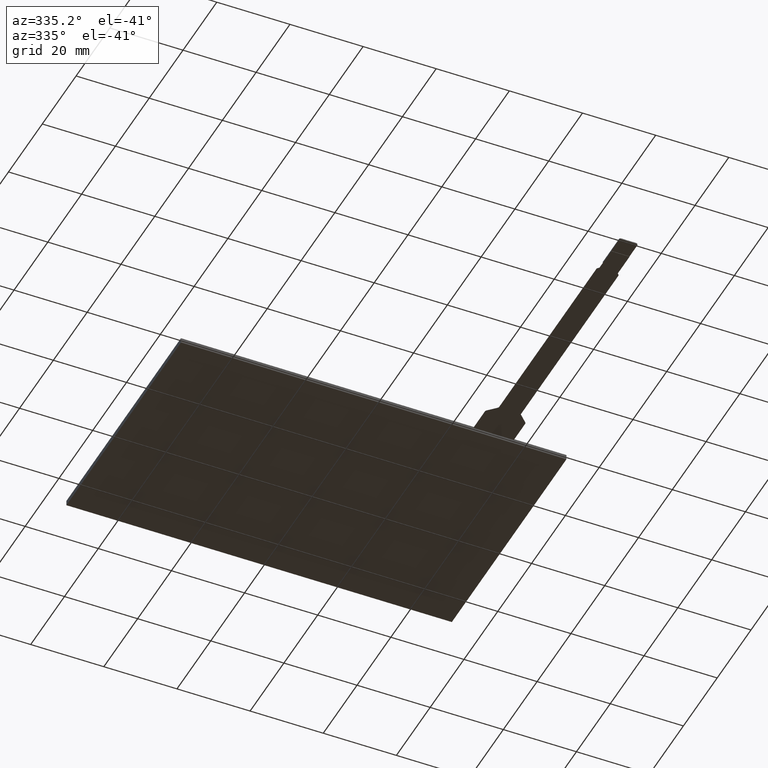
[diagram: clean part render]
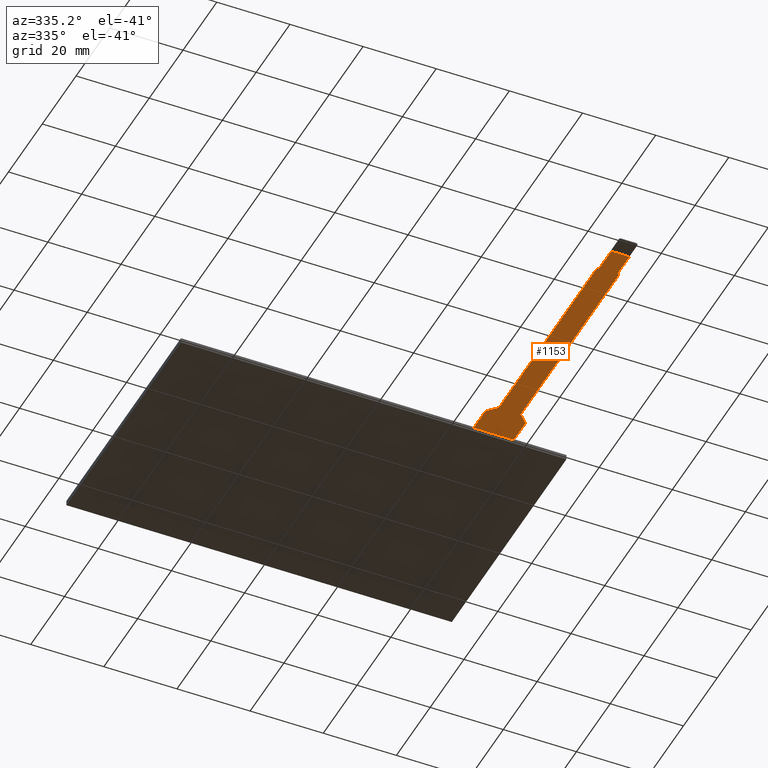
[diagram: same view with one face highlighted and labeled with its STEP entity id]
A machine part, auxiliary view. The second image highlights one B-rep face of the part: STEP entity #1153.
In plain terms, the highlighted planar face has unit normal (0, 0, -1).
Its self-contained STEP definition (entity closure, byte-faithful):
#69=PLANE('',#1260);
#128=FACE_OUTER_BOUND('',#187,.T.);
#187=EDGE_LOOP('',(#1001,#1002,#1003,#1004,#1005,#1006,#1007,#1008,#1009,
#1010,#1011,#1012,#1013,#1014,#1015,#1016,#1017,#1018,#1019,#1020));
#221=LINE('',#1637,#355);
#227=LINE('',#1652,#361);
#234=LINE('',#1668,#368);
#238=LINE('',#1678,#372);
#241=LINE('',#1686,#375);
#244=LINE('',#1695,#378);
#248=LINE('',#1704,#382);
#278=LINE('',#1779,#412);
#301=LINE('',#1834,#435);
#302=LINE('',#1836,#436);
#303=LINE('',#1838,#437);
#304=LINE('',#1840,#438);
#355=VECTOR('',#1317,10.);
#361=VECTOR('',#1333,10.);
#368=VECTOR('',#1346,10.);
#372=VECTOR('',#1356,10.);
#375=VECTOR('',#1365,10.);
#378=VECTOR('',#1374,10.);
#382=VECTOR('',#1384,10.);
#412=VECTOR('',#1452,10.);
#435=VECTOR('',#1509,10.);
#436=VECTOR('',#1512,10.);
#437=VECTOR('',#1515,10.);
#438=VECTOR('',#1518,10.);
#475=CIRCLE('',#1191,0.5);
#484=CIRCLE('',#1203,0.5);
#485=CIRCLE('',#1205,0.5);
#486=CIRCLE('',#1208,0.5);
#487=CIRCLE('',#1211,0.5);
#488=CIRCLE('',#1214,0.5);
#489=CIRCLE('',#1217,0.5);
#490=CIRCLE('',#1220,0.5);
#503=VERTEX_POINT('',#1589);
#504=VERTEX_POINT('',#1590);
#525=VERTEX_POINT('',#1636);
#526=VERTEX_POINT('',#1640);
#527=VERTEX_POINT('',#1644);
#528=VERTEX_POINT('',#1645);
#529=VERTEX_POINT('',#1650);
#530=VERTEX_POINT('',#1654);
#535=VERTEX_POINT('',#1666);
#536=VERTEX_POINT('',#1670);
#537=VERTEX_POINT('',#1672);
#538=VERTEX_POINT('',#1676);
#539=VERTEX_POINT('',#1680);
#540=VERTEX_POINT('',#1684);
#541=VERTEX_POINT('',#1688);
#542=VERTEX_POINT('',#1689);
#543=VERTEX_POINT('',#1694);
#544=VERTEX_POINT('',#1698);
#545=VERTEX_POINT('',#1700);
#571=VERTEX_POINT('',#1777);
#611=EDGE_CURVE('',#503,#504,#475,.T.);
#634=EDGE_CURVE('',#525,#504,#221,.T.);
#636=EDGE_CURVE('',#525,#526,#484,.T.);
#638=EDGE_CURVE('',#527,#528,#485,.T.);
#642=EDGE_CURVE('',#527,#529,#227,.T.);
#644=EDGE_CURVE('',#530,#529,#486,.T.);
#650=EDGE_CURVE('',#530,#535,#234,.T.);
#652=EDGE_CURVE('',#536,#537,#487,.T.);
#655=EDGE_CURVE('',#536,#538,#238,.T.);
#656=EDGE_CURVE('',#539,#538,#488,.T.);
#659=EDGE_CURVE('',#539,#540,#241,.T.);
#660=EDGE_CURVE('',#541,#542,#489,.T.);
#663=EDGE_CURVE('',#543,#542,#244,.T.);
#666=EDGE_CURVE('',#544,#545,#490,.T.);
#668=EDGE_CURVE('',#544,#528,#248,.T.);
#704=EDGE_CURVE('',#535,#571,#278,.T.);
#733=EDGE_CURVE('',#503,#537,#301,.T.);
#734=EDGE_CURVE('',#571,#526,#302,.T.);
#735=EDGE_CURVE('',#541,#545,#303,.T.);
#736=EDGE_CURVE('',#543,#540,#304,.T.);
#1001=ORIENTED_EDGE('',*,*,#611,.F.);
#1002=ORIENTED_EDGE('',*,*,#733,.T.);
#1003=ORIENTED_EDGE('',*,*,#652,.F.);
#1004=ORIENTED_EDGE('',*,*,#655,.T.);
#1005=ORIENTED_EDGE('',*,*,#656,.F.);
#1006=ORIENTED_EDGE('',*,*,#659,.T.);
#1007=ORIENTED_EDGE('',*,*,#736,.F.);
#1008=ORIENTED_EDGE('',*,*,#663,.T.);
#1009=ORIENTED_EDGE('',*,*,#660,.F.);
#1010=ORIENTED_EDGE('',*,*,#735,.T.);
#1011=ORIENTED_EDGE('',*,*,#666,.F.);
#1012=ORIENTED_EDGE('',*,*,#668,.T.);
#1013=ORIENTED_EDGE('',*,*,#638,.F.);
#1014=ORIENTED_EDGE('',*,*,#642,.T.);
#1015=ORIENTED_EDGE('',*,*,#644,.F.);
#1016=ORIENTED_EDGE('',*,*,#650,.T.);
#1017=ORIENTED_EDGE('',*,*,#704,.T.);
#1018=ORIENTED_EDGE('',*,*,#734,.T.);
#1019=ORIENTED_EDGE('',*,*,#636,.F.);
#1020=ORIENTED_EDGE('',*,*,#634,.T.);
#1153=ADVANCED_FACE('',(#128),#69,.T.);
#1191=AXIS2_PLACEMENT_3D('',#1591,#1281,#1282);
#1203=AXIS2_PLACEMENT_3D('',#1641,#1321,#1322);
#1205=AXIS2_PLACEMENT_3D('',#1646,#1326,#1327);
#1208=AXIS2_PLACEMENT_3D('',#1656,#1337,#1338);
#1211=AXIS2_PLACEMENT_3D('',#1673,#1350,#1351);
#1214=AXIS2_PLACEMENT_3D('',#1681,#1359,#1360);
#1217=AXIS2_PLACEMENT_3D('',#1690,#1368,#1369);
#1220=AXIS2_PLACEMENT_3D('',#1701,#1379,#1380);
#1260=AXIS2_PLACEMENT_3D('',#1839,#1516,#1517);
#1281=DIRECTION('center_axis',(0.,0.,1.));
#1282=DIRECTION('ref_axis',(-0.92387953251128,-0.382683432365107,0.));
#1317=DIRECTION('',(-0.707106781186551,0.707106781186544,0.));
#1321=DIRECTION('center_axis',(0.,0.,-1.));
#1322=DIRECTION('ref_axis',(0.923879532511294,0.382683432365074,0.));
#1326=DIRECTION('center_axis',(0.,0.,1.));
#1327=DIRECTION('ref_axis',(0.923879532511279,-0.38268343236511,0.));
#1333=DIRECTION('',(-0.707106781186551,-0.707106781186544,0.));
#1337=DIRECTION('center_axis',(0.,0.,-1.));
#1338=DIRECTION('ref_axis',(-0.92387953251128,0.382683432365107,0.));
#1346=DIRECTION('',(3.70074341541719E-16,-1.,0.));
#1350=DIRECTION('center_axis',(0.,0.,-1.));
#1351=DIRECTION('ref_axis',(0.923879532511287,0.38268343236509,0.));
#1356=DIRECTION('',(-0.707106781186547,0.707106781186548,0.));
#1359=DIRECTION('center_axis',(0.,0.,1.));
#1360=DIRECTION('ref_axis',(-0.923879532511287,-0.38268343236509,0.));
#1365=DIRECTION('',(0.,1.,0.));
#1368=DIRECTION('center_axis',(0.,0.,1.));
#1369=DIRECTION('ref_axis',(0.923879532511287,-0.38268343236509,0.));
#1374=DIRECTION('',(0.,-1.,0.));
#1379=DIRECTION('center_axis',(0.,0.,-1.));
#1380=DIRECTION('ref_axis',(-0.923879532511292,0.382683432365077,0.));
#1384=DIRECTION('',(6.125368411725E-16,-1.,0.));
#1452=DIRECTION('',(-1.,0.,0.));
#1509=DIRECTION('',(-1.53134210293125E-16,1.,0.));
#1512=DIRECTION('',(0.,1.,0.));
#1515=DIRECTION('',(-0.707106781186546,-0.707106781186549,0.));
#1516=DIRECTION('center_axis',(0.,0.,-1.));
#1517=DIRECTION('ref_axis',(-1.,0.,0.));
#1518=DIRECTION('',(-1.,-8.42674022485887E-17,0.));
#1589=CARTESIAN_POINT('',(29.75,-103.842893218813,-0.3));
#1590=CARTESIAN_POINT('',(29.8964466094067,-104.196446609407,-0.3));
#1591=CARTESIAN_POINT('Origin',(30.25,-103.842893218813,-0.3));
#1636=CARTESIAN_POINT('',(30.1035533905933,-104.403553390593,-0.3));
#1637=CARTESIAN_POINT('',(29.75,-104.05,-0.3));
#1640=CARTESIAN_POINT('',(30.25,-104.757106781187,-0.3));
#1641=CARTESIAN_POINT('Origin',(29.75,-104.757106781187,-0.3));
#1644=CARTESIAN_POINT('',(35.6035533905933,-104.196446609407,-0.3));
#1645=CARTESIAN_POINT('',(35.75,-103.842893218813,-0.3));
#1646=CARTESIAN_POINT('Origin',(35.25,-103.842893218813,-0.3));
#1650=CARTESIAN_POINT('',(35.3964466094067,-104.403553390593,-0.3));
#1652=CARTESIAN_POINT('',(35.25,-104.55,-0.3));
#1654=CARTESIAN_POINT('',(35.25,-104.757106781187,-0.3));
#1656=CARTESIAN_POINT('Origin',(35.75,-104.757106781187,-0.3));
#1666=CARTESIAN_POINT('',(35.25,-111.55,-0.3));
#1668=CARTESIAN_POINT('',(35.25,-116.55,-0.3));
#1670=CARTESIAN_POINT('',(29.6035533905933,-45.9035533905933,-0.3));
#1672=CARTESIAN_POINT('',(29.75,-46.2571067811866,-0.3));
#1673=CARTESIAN_POINT('Origin',(29.25,-46.2571067811866,-0.3));
#1676=CARTESIAN_POINT('',(27.3964466094067,-43.6964466094067,-0.3));
#1678=CARTESIAN_POINT('',(27.25,-43.55,-0.3));
#1680=CARTESIAN_POINT('',(27.25,-43.3428932188134,-0.3));
#1681=CARTESIAN_POINT('Origin',(27.75,-43.3428932188134,-0.3));
#1684=CARTESIAN_POINT('',(27.25,-36.55,-0.3));
#1686=CARTESIAN_POINT('',(27.25,-36.55,-0.3));
#1688=CARTESIAN_POINT('',(38.1035533905933,-43.6964466094067,-0.3));
#1689=CARTESIAN_POINT('',(38.25,-43.3428932188134,-0.3));
#1690=CARTESIAN_POINT('Origin',(37.75,-43.3428932188134,-0.3));
#1694=CARTESIAN_POINT('',(38.25,-36.55,-0.3));
#1695=CARTESIAN_POINT('',(38.25,-43.55,-0.3));
#1698=CARTESIAN_POINT('',(35.75,-46.2571067811865,-0.3));
#1700=CARTESIAN_POINT('',(35.8964466094067,-45.9035533905933,-0.3));
#1701=CARTESIAN_POINT('Origin',(36.25,-46.2571067811865,-0.3));
#1704=CARTESIAN_POINT('',(35.75,-104.05,-0.3));
#1777=CARTESIAN_POINT('',(30.25,-111.55,-0.3));
#1779=CARTESIAN_POINT('',(34.,-111.55,-0.3));
#1834=CARTESIAN_POINT('',(29.75,-46.05,-0.3));
#1836=CARTESIAN_POINT('',(30.25,-104.55,-0.3));
#1838=CARTESIAN_POINT('',(35.75,-46.05,-0.3));
#1839=CARTESIAN_POINT('Origin',(32.75,-76.55,-0.3));
#1840=CARTESIAN_POINT('',(42.7,-36.55,-0.3));